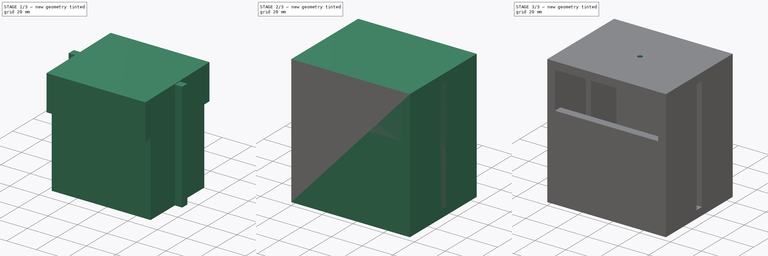
[diagram: build sequence overview — one tinted view per stage of 3, left to right]
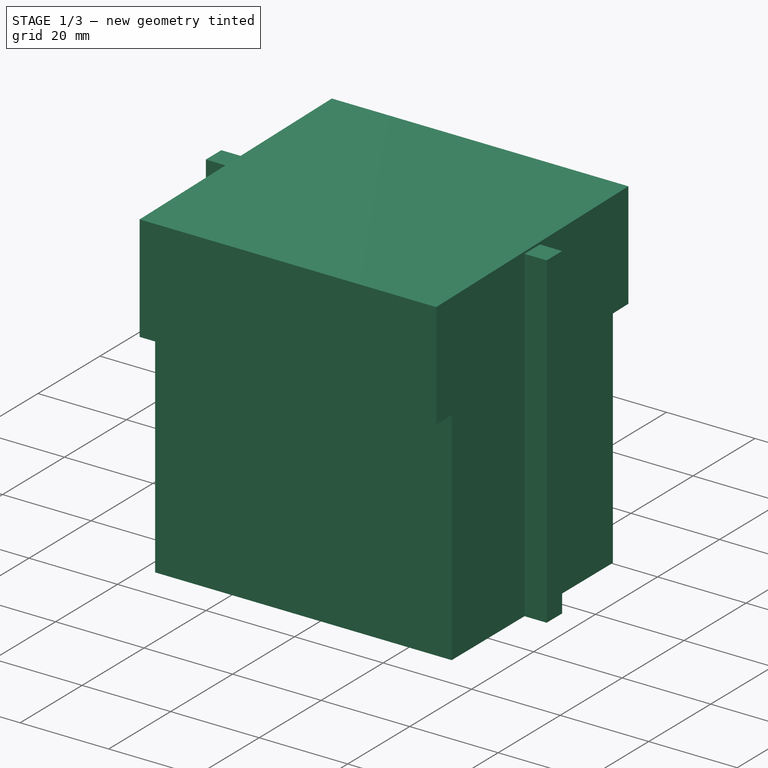
[diagram: stage 1 of 3 — iso view after this stage's code; geometry added in this stage tinted green]
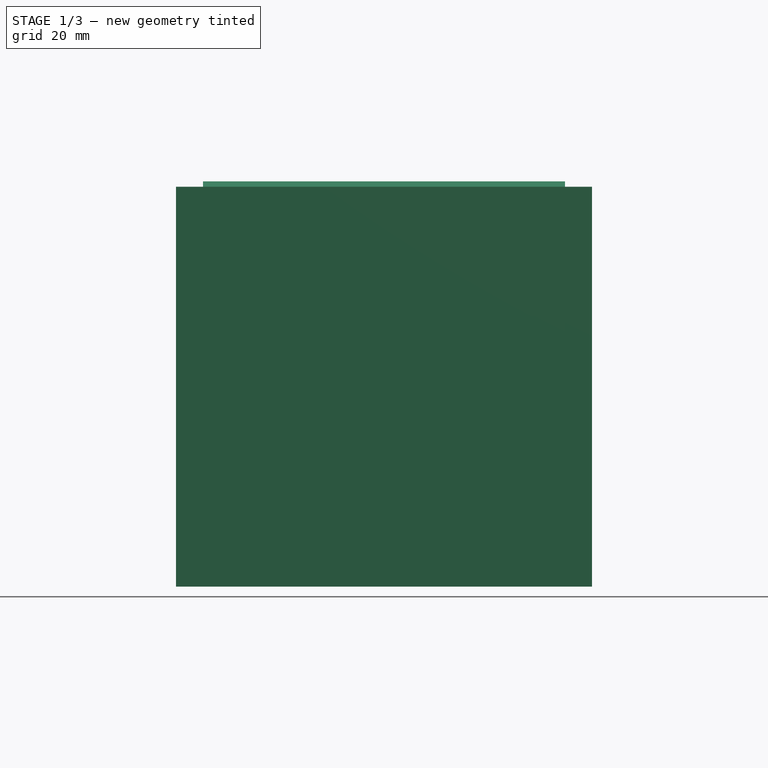
[diagram: stage 1 of 3 — front view after this stage's code; geometry added in this stage tinted green]
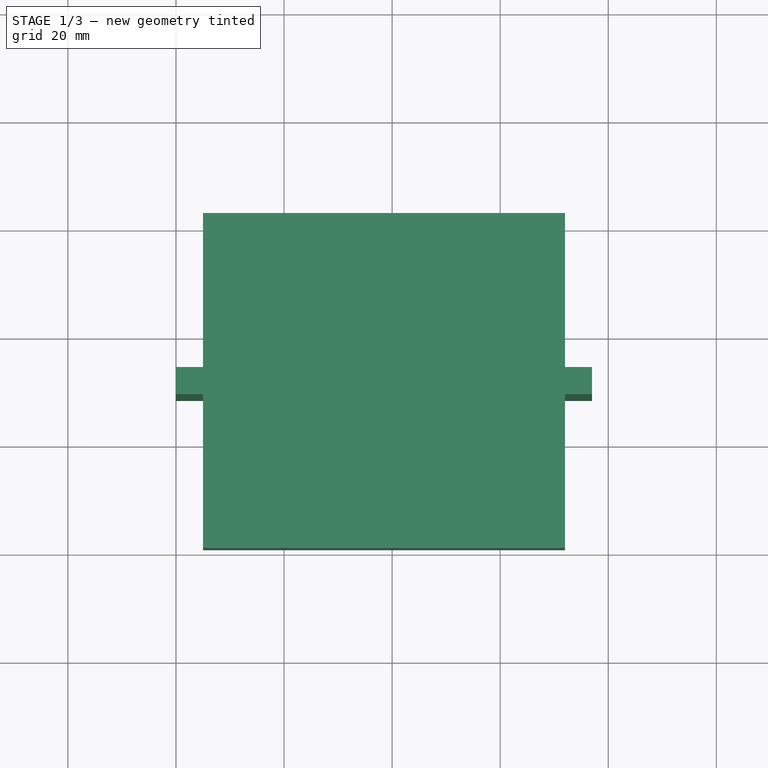
[diagram: stage 1 of 3 — top view after this stage's code; geometry added in this stage tinted green]
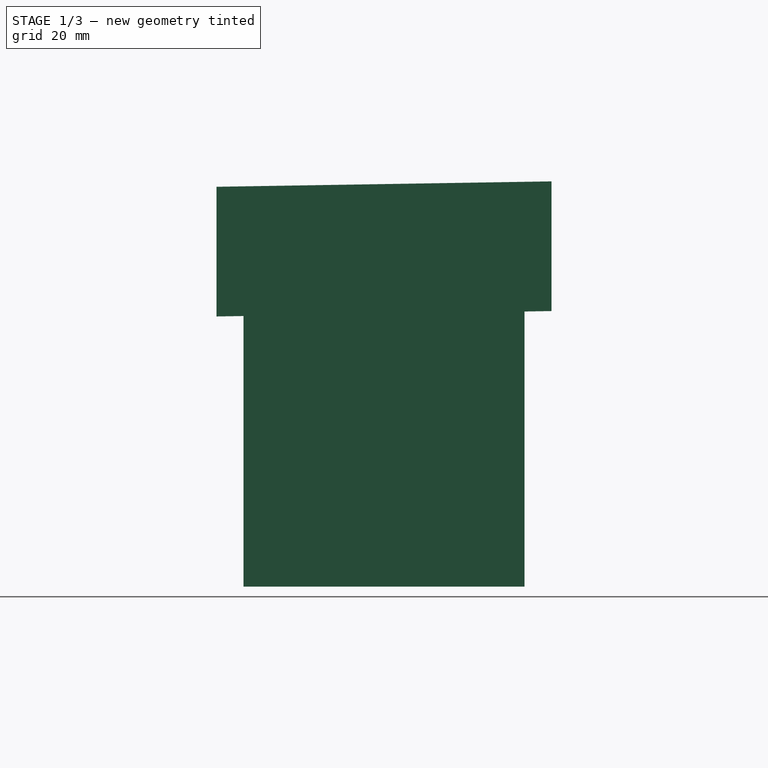
[diagram: stage 1 of 3 — right view after this stage's code; geometry added in this stage tinted green]
FCSTD DOCUMENT  (FreeCAD 0.16R6704 (Git))
Label: weight_box
License: All rights reserved
LicenseURL: http://en.wikipedia.org/wiki/All_rights_reserved
objects: Sketcher::SketchObject×3, Part::Cut×3, Part::Box×2, Part::Extrusion×2, PartDesign::Pocket×1
note: 12 computed .brp shape members not serialized (recipe doc carries the construction recipe); baked Part::Feature solids carry a one-line shape summary decoded from their .brp

FEATURE [Part::Box] Box001  label="Cube"
  Height = 74
  Length = 67
  Placement = pos=(5,5,5) rot=(0,0,1;0rad)
  Width = 52
FEATURE [Part::Extrusion] Extrude
  Base = -> Sketch
  Dir = (0,62,1)
  Solid = true
FEATURE [Sketcher::SketchObject] Sketch002
  Placement = pos=(0,0,0) rot=(0.57735,0.57735,0.57735;2.0944rad)
  sketch-geometry (4):
    g0: LineSegment StartX=28.5 StartY=79 StartZ=0 EndX=33.5 EndY=79 EndZ=0
    g1: LineSegment StartX=33.5 StartY=79 StartZ=0 EndX=33.5 EndY=5 EndZ=0
    g2: LineSegment StartX=33.5 StartY=5 StartZ=0 EndX=28.5 EndY=5 EndZ=0
    g3: LineSegment StartX=28.5 StartY=5 StartZ=0 EndX=28.5 EndY=79 EndZ=0
  constraints (12):
    c: Coincident(g0,g1)
    c: Coincident(g1,g2)
    c: Coincident(g2,g3)
    c: Coincident(g3,g0)
    c: Horizontal(g0)
    c: Horizontal(g2)
    c: Vertical(g1)
    c: Vertical(g3)
    c: DistanceY(g2) = 5
    c: Distance(g3) = 74
    c: DistanceX(g2) = 28.5
    c: Distance(g2) = 5
FEATURE [Part::Extrusion] Extrude001
  Base = -> Sketch002
  Dir = (77,0,0)
  Solid = true
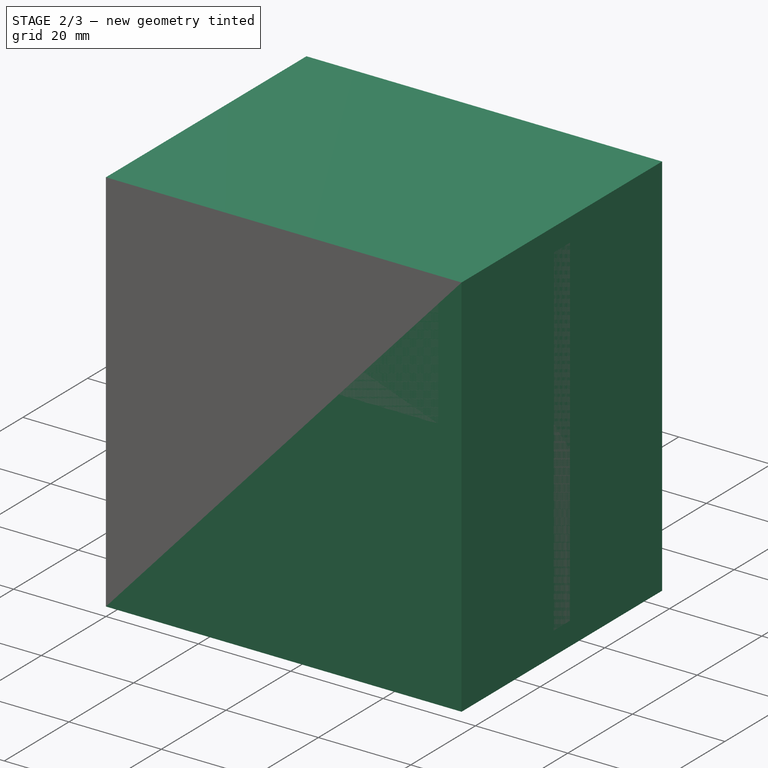
[diagram: stage 2 of 3 — iso view after this stage's code; geometry added in this stage tinted green]
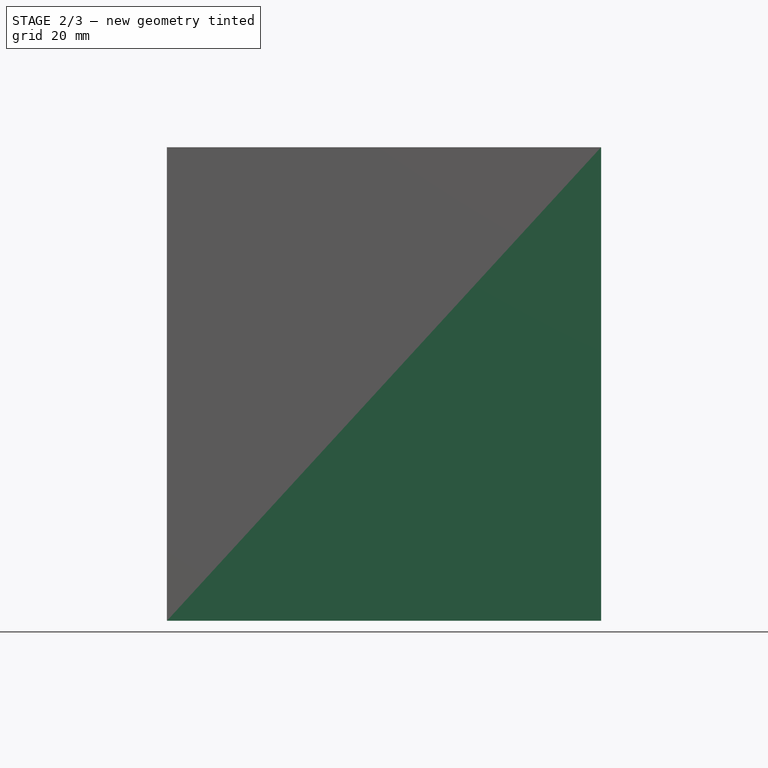
[diagram: stage 2 of 3 — front view after this stage's code; geometry added in this stage tinted green]
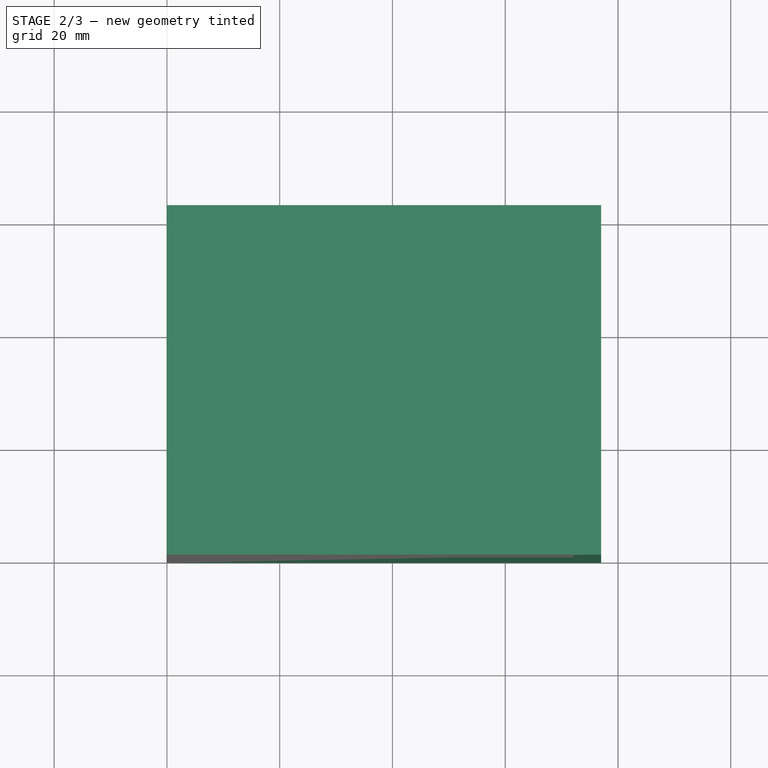
[diagram: stage 2 of 3 — top view after this stage's code; geometry added in this stage tinted green]
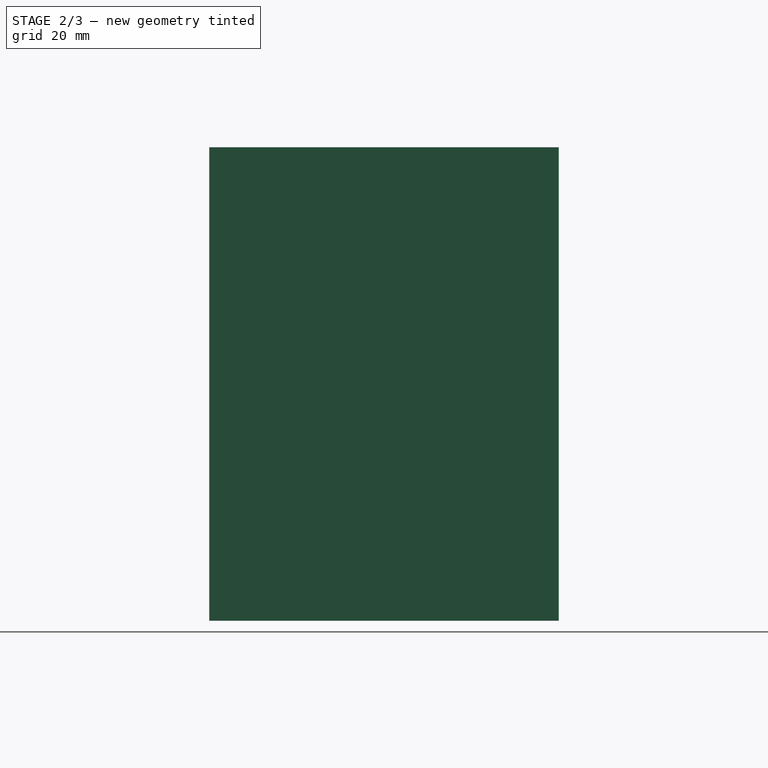
[diagram: stage 2 of 3 — right view after this stage's code; geometry added in this stage tinted green]
FEATURE [Part::Box] Box  label="BigCube"
  Height = 84
  Length = 77
  Width = 62
FEATURE [Sketcher::SketchObject] Sketch
  Placement = pos=(0,0,0) rot=(-1,0,0;4.71239rad)
  sketch-geometry (4):
    g0: LineSegment StartX=5 StartY=79 StartZ=0 EndX=72 EndY=79 EndZ=0
    g1: LineSegment StartX=72 StartY=79 StartZ=0 EndX=72 EndY=55 EndZ=0
    g2: LineSegment StartX=72 StartY=55 StartZ=0 EndX=5 EndY=55 EndZ=0
    g3: LineSegment StartX=5 StartY=55 StartZ=0 EndX=5 EndY=79 EndZ=0
  constraints (8):
    c: Coincident(g0,g1)
    c: Coincident(g1,g2)
    c: Coincident(g2,g3)
    c: Coincident(g3,g0)
    c: Horizontal(g0)
    c: Horizontal(g2)
    c: Vertical(g1)
    c: Vertical(g3)
FEATURE [Part::Cut] Cut
  Base = -> Box
  Tool = -> Box001
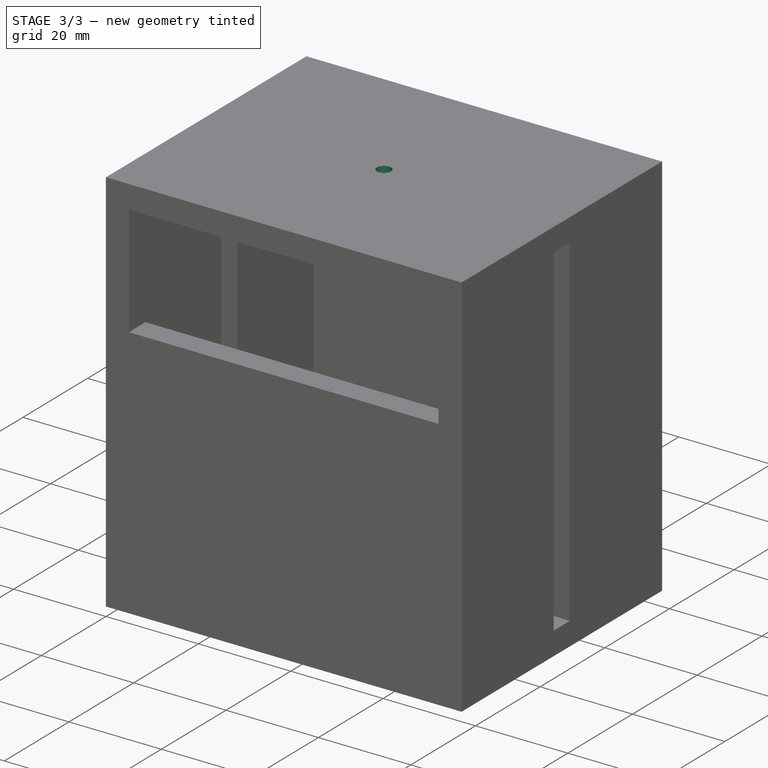
[diagram: stage 3 of 3 — iso view after this stage's code; geometry added in this stage tinted green]
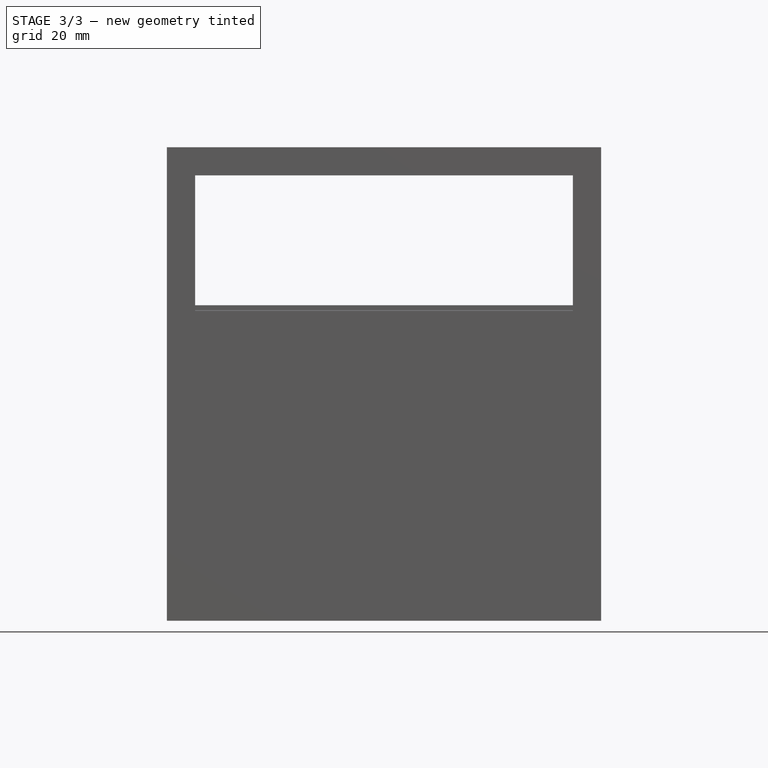
[diagram: stage 3 of 3 — front view after this stage's code; geometry added in this stage tinted green]
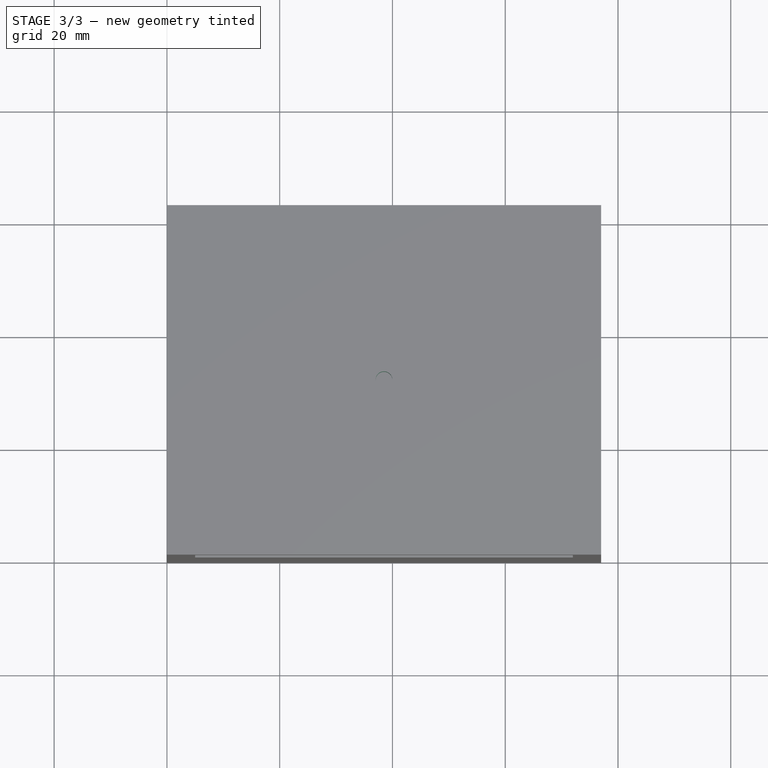
[diagram: stage 3 of 3 — top view after this stage's code; geometry added in this stage tinted green]
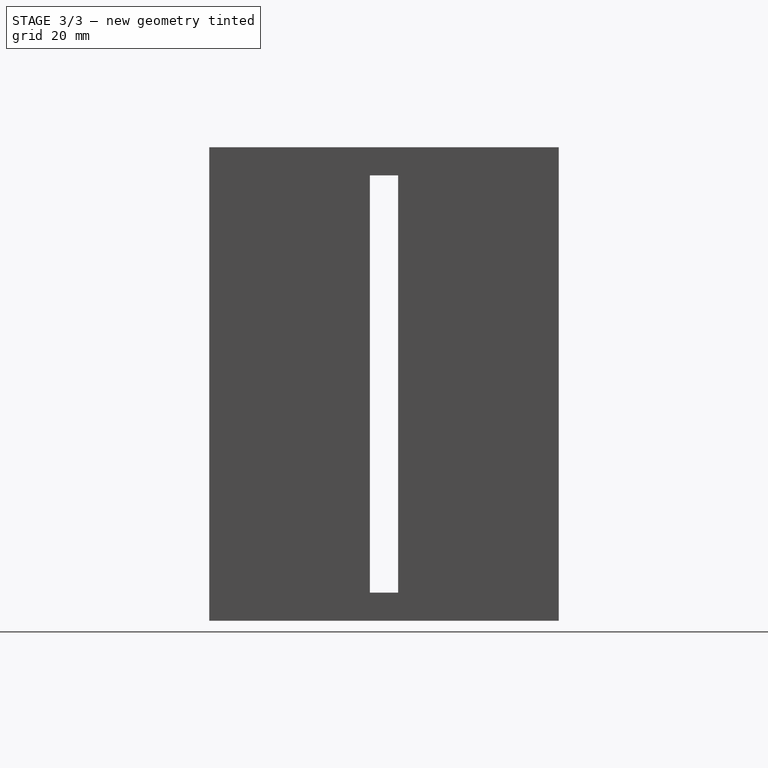
[diagram: stage 3 of 3 — right view after this stage's code; geometry added in this stage tinted green]
FEATURE [Part::Cut] Cut001
  Base = -> Cut
  Tool = -> Extrude
FEATURE [Sketcher::SketchObject] Sketch001
  Placement = pos=(0,0,84) rot=(0,0,1;0rad)
  Support = -> Cut001 [Face3]
  sketch-geometry (1):
    g0: Circle CenterX=38.5 CenterY=31 CenterZ=0 NormalX=0 NormalY=0 NormalZ=1 Radius=1.5
  constraints (3):
    c: DistanceX(g0) = 38.5
    c: DistanceY(g0) = 31
    c: Radius(g0) = 1.5
FEATURE [PartDesign::Pocket] Pocket
  Length = 5
  Sketch = -> Sketch001
  Type = 0
FEATURE [Part::Cut] Cut002
  Base = -> Pocket
  Tool = -> Extrude001
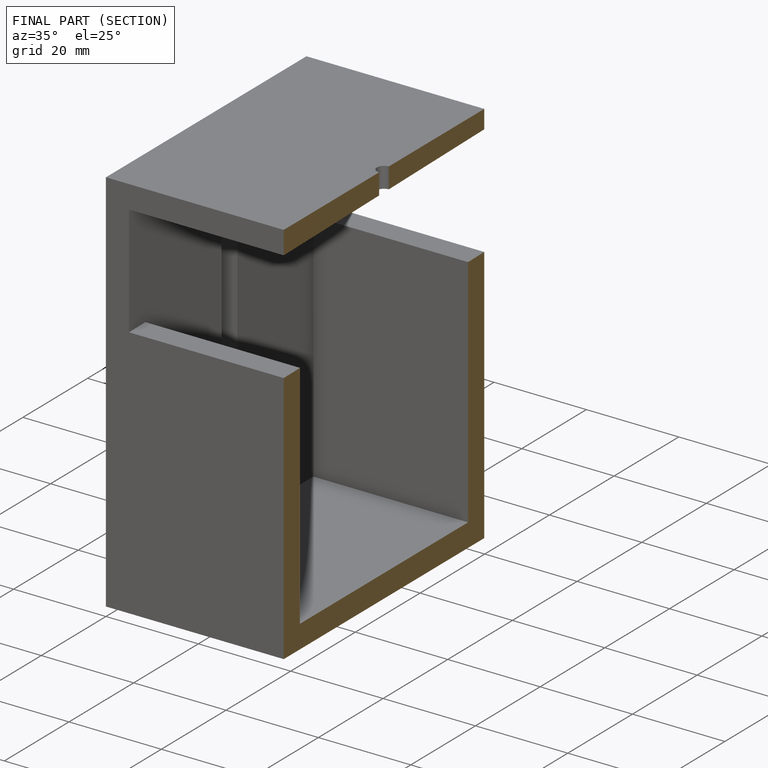
[diagram: finished part — half-section view (interior)]
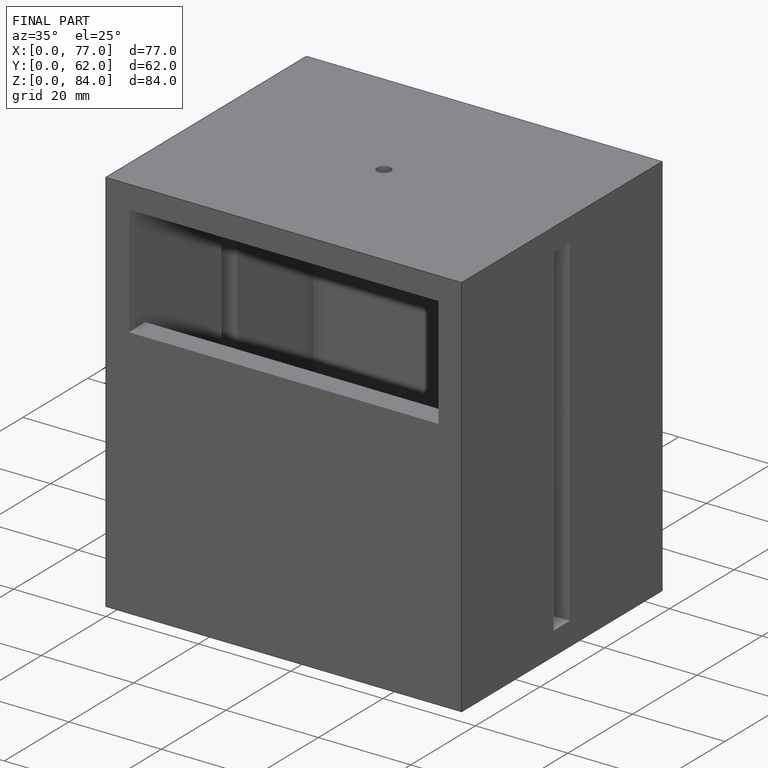
[diagram: finished part — iso view with bounding-box wireframe]
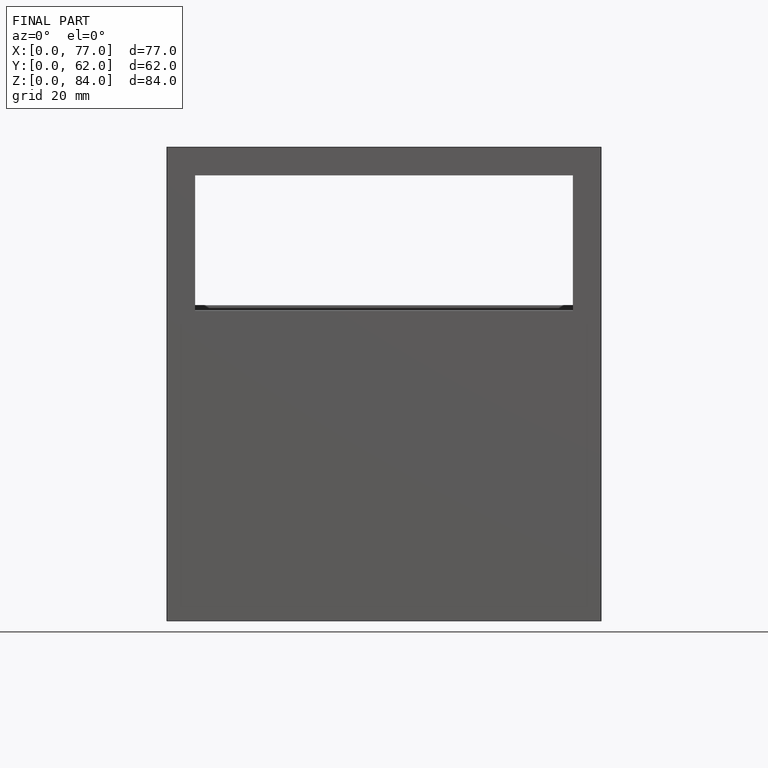
[diagram: finished part — front view with bounding-box wireframe]
